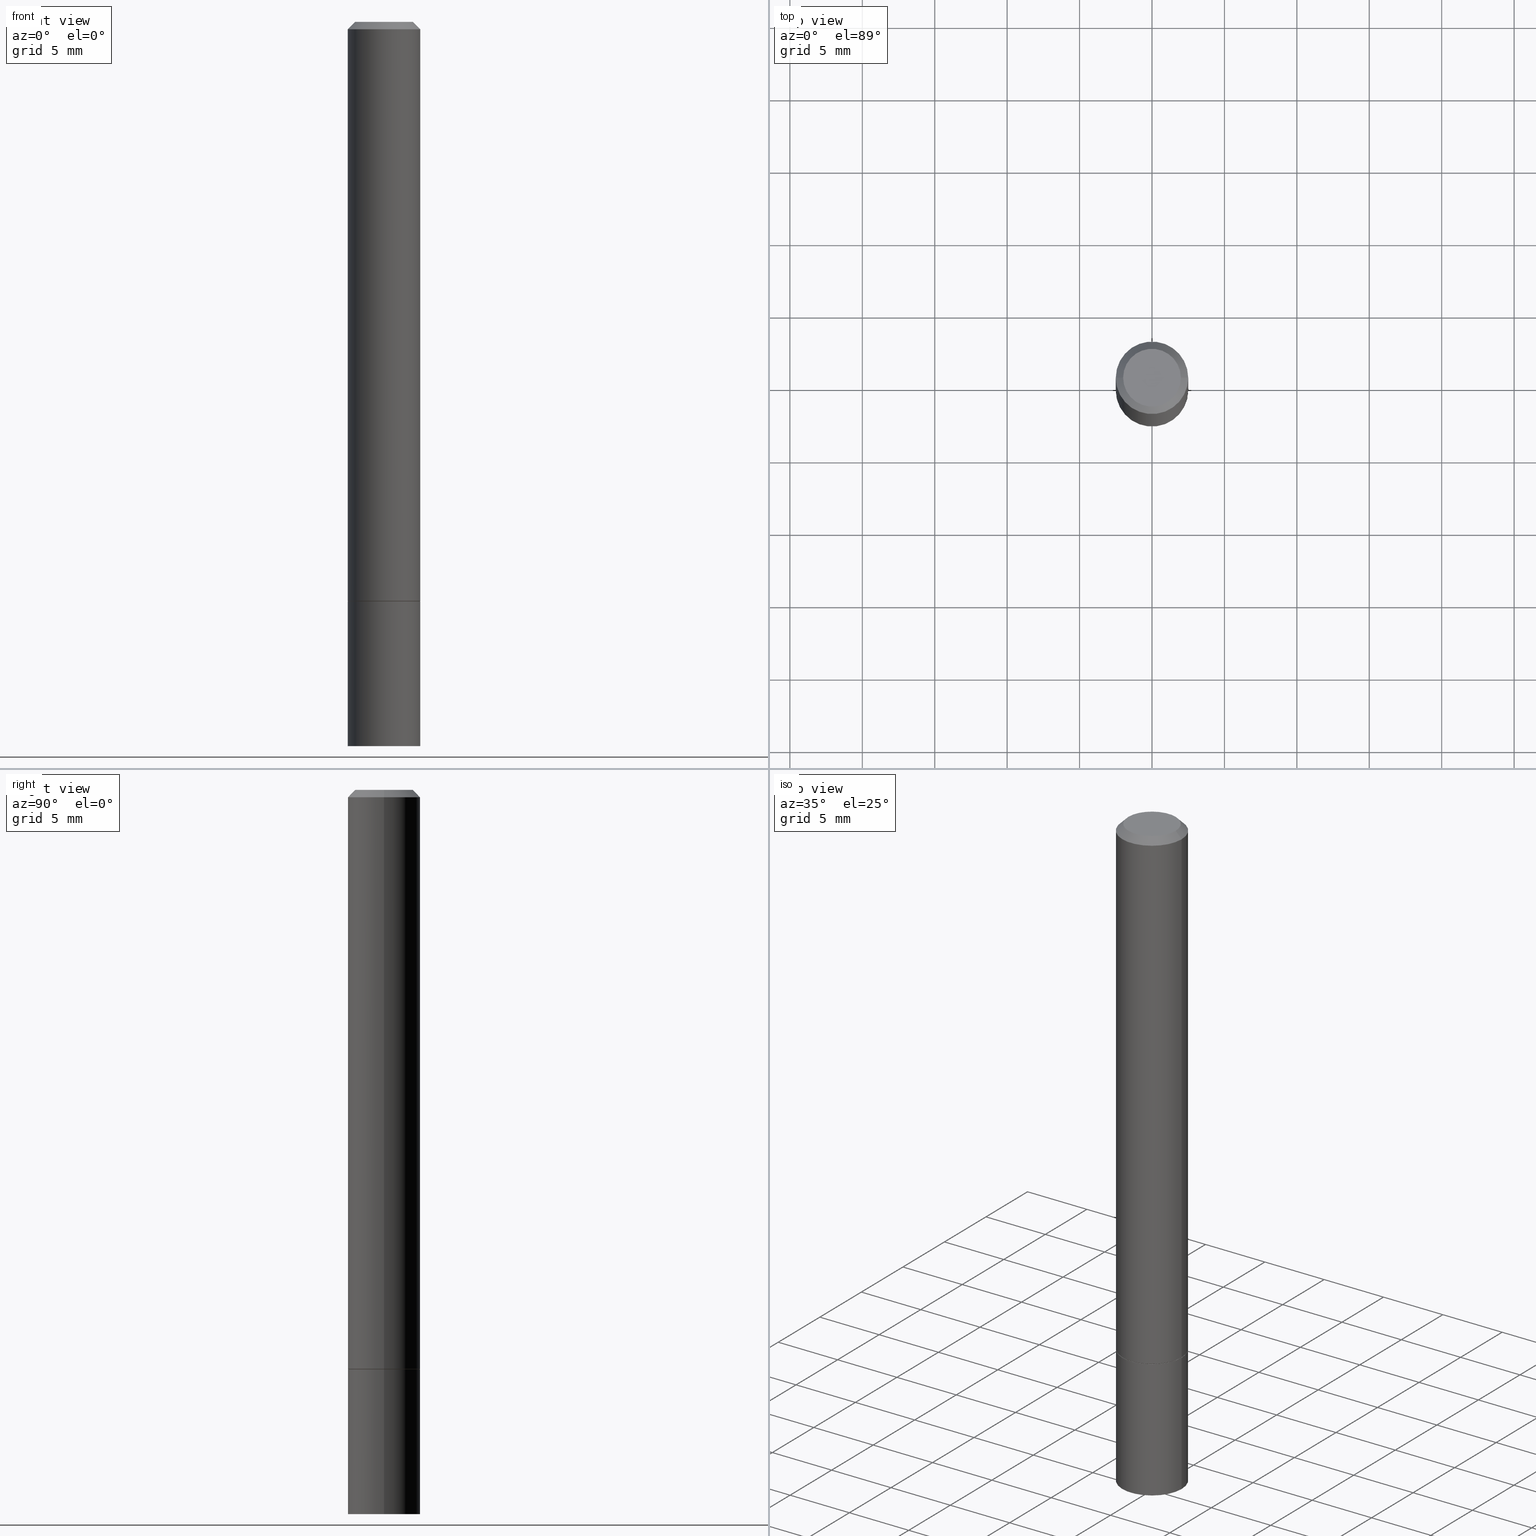
[diagram: canonical four-view strip — front | top / right | iso, engineering-drawing reading convention]
A machine part, canonical four-view strip (front | top / right | iso — engineering-drawing reading convention). The complete STEP part file that produces these views, byte-faithful:
ISO-10303-21;
HEADER;
FILE_DESCRIPTION (( 'STEP AP203' ),
    '1' );
FILE_NAME ('41737.STEP',
    '2024-02-28T02:54:46',
    ( '' ),
    ( '' ),
    'SwSTEP 2.0',
    'SolidWorks 2023',
    '' );
FILE_SCHEMA (( 'CONFIG_CONTROL_DESIGN' ));
ENDSEC;

DATA;
#1 = CARTESIAN_POINT ( 'NONE',  ( 3.851124275980353916E-29, -5.498384812410186944E-15, -1.574800000000000422 ) ) ;
#2 = DIRECTION ( 'NONE',  ( -1.000000000000000000, 6.982962677686265922E-15, -4.876176775795935793E-29 ) ) ;
#3 = CARTESIAN_POINT ( 'NONE',  ( 0.07844999999999981155, -6.417258612913221441E-16, 4.159044147803931210E-30 ) ) ;
#4 = DIRECTION ( 'NONE',  ( 2.438088387897960049E-29, -3.491481338843145188E-15, -1.000000000000000000 ) ) ;
#5 = CYLINDRICAL_SURFACE ( 'NONE', #269, 0.09844999999999988483 ) ;
#6 = PRODUCT_RELATED_PRODUCT_CATEGORY ( 'detail', '', ( #239 ) ) ;
#7 = CARTESIAN_POINT ( 'NONE',  ( 0.09844999999999978768, -7.452456546574688288E-16, -0.02000000000000002123 ) ) ;
#8 = APPLICATION_CONTEXT ( 'configuration controlled 3d designs of mechanical parts and assemblies' ) ;
#9 = LINE ( 'NONE', #100, #284 ) ;
#10 = DIRECTION ( 'NONE',  ( 0.7071067811864267805, -2.468850131080992517E-15, 0.7071067811866682540 ) ) ;
#11 = ORIENTED_EDGE ( 'NONE', *, *, #176, .F. ) ;
#12 = EDGE_CURVE ( 'NONE', #117, #337, #9, .T. ) ;
#13 = EDGE_LOOP ( 'NONE', ( #88, #339, #334, #169 ) ) ;
#14 = LINE ( 'NONE', #18, #33 ) ;
#15 = APPROVAL ( #301, 'UNSPECIFIED' ) ;
#16 = CIRCLE ( 'NONE', #170, 0.09844999999999999585 ) ;
#17 = COORDINATED_UNIVERSAL_TIME_OFFSET ( 5, 0, .BEHIND. ) ;
#18 = CARTESIAN_POINT ( 'NONE',  ( -0.09744999999999999496, -4.805960916411969841E-15, -1.574800000000000422 ) ) ;
#19 = DIRECTION ( 'NONE',  ( -1.000000000000000000, 6.982962677686265922E-15, -4.876176775795935793E-29 ) ) ;
#20 = CIRCLE ( 'NONE', #52, 0.07844999999999981155 ) ;
#21 = AXIS2_PLACEMENT_3D ( 'NONE', #69, #116, #286 ) ;
#22 = COORDINATED_UNIVERSAL_TIME_OFFSET ( 5, 0, .BEHIND. ) ;
#23 = MANIFOLD_SOLID_BREP ( 'Body-Move/Copy2[2]', #48 ) ;
#24 = VERTEX_POINT ( 'NONE', #294 ) ;
#25 = ORIENTED_EDGE ( 'NONE', *, *, #281, .T. ) ;
#26 = AXIS2_PLACEMENT_3D ( 'NONE', #42, #65, #266 ) ;
#27 = CC_DESIGN_SECURITY_CLASSIFICATION ( #186, ( #178 ) ) ;
#28 = EDGE_CURVE ( 'NONE', #366, #306, #165, .T. ) ;
#29 = VERTEX_POINT ( 'NONE', #130 ) ;
#30 = FACE_OUTER_BOUND ( 'NONE', #291, .T. ) ;
#31 = DIRECTION ( 'NONE',  ( -2.445468806185136597E-29, 3.491481338843145583E-15, 1.000000000000000000 ) ) ;
#32 = AXIS2_PLACEMENT_3D ( 'NONE', #59, #123, #67 ) ;
#33 = VECTOR ( 'NONE', #238, 39.37007874015748143 ) ;
#34 = DIRECTION ( 'NONE',  ( -2.445468806185136877E-29, 3.491481338843145188E-15, 1.000000000000000000 ) ) ;
#35 = ORIENTED_EDGE ( 'NONE', *, *, #176, .T. ) ;
#36 = FACE_OUTER_BOUND ( 'NONE', #99, .T. ) ;
#37 = FACE_OUTER_BOUND ( 'NONE', #212, .T. ) ;
#38 = FACE_OUTER_BOUND ( 'NONE', #223, .T. ) ;
#39 = DIRECTION ( 'NONE',  ( 1.000000000000000000, -6.982962677686264344E-15, 0.000000000000000000 ) ) ;
#40 = PERSON_AND_ORGANIZATION ( #146, #244 ) ;
#41 = CIRCLE ( 'NONE', #78, 0.09844999999999978768 ) ;
#42 = CARTESIAN_POINT ( 'NONE',  ( 3.851124275980353916E-29, -5.498384812410186944E-15, -1.574800000000000422 ) ) ;
#43 = DIRECTION ( 'NONE',  ( 1.000000000000000000, -6.982962677686266711E-15, 0.000000000000000000 ) ) ;
#44 = PERSON_AND_ORGANIZATION_ROLE ( 'creator' ) ;
#45 = FACE_OUTER_BOUND ( 'NONE', #340, .T. ) ;
#46 = APPROVAL_ROLE ( '' ) ;
#47 = DIRECTION ( 'NONE',  ( 1.000000000000000000, -6.982962677686265922E-15, 0.000000000000000000 ) ) ;
#48 = CLOSED_SHELL ( 'NONE', ( #349, #226, #98, #248, #55, #87, #356, #201 ) ) ;
#49 = VECTOR ( 'NONE', #359, 39.37007874015748143 ) ;
#50 = APPROVAL_ROLE ( '' ) ;
#51 = PERSON_AND_ORGANIZATION ( #146, #244 ) ;
#52 = AXIS2_PLACEMENT_3D ( 'NONE', #319, #31, #309 ) ;
#53 = CC_DESIGN_APPROVAL ( #82, ( #178 ) ) ;
#54 = VERTEX_POINT ( 'NONE', #153 ) ;
#55 = ADVANCED_FACE ( 'NONE', ( #260 ), #5, .T. ) ;
#56 = ORIENTED_EDGE ( 'NONE', *, *, #80, .F. ) ;
#57 = CONICAL_SURFACE ( 'NONE', #196, 0.09844999999999978768, 0.7853981633974471688 ) ;
#58 =( CONVERSION_BASED_UNIT ( 'INCH', #362 ) LENGTH_UNIT ( ) NAMED_UNIT ( #210 ) );
#59 = CARTESIAN_POINT ( 'NONE',  ( 0.000000000000000000, 0.000000000000000000, 0.000000000000000000 ) ) ;
#60 = ORIENTED_EDGE ( 'NONE', *, *, #191, .T. ) ;
#61 = EDGE_CURVE ( 'NONE', #193, #287, #331, .T. ) ;
#62 = CARTESIAN_POINT ( 'NONE',  ( 4.813905344975441835E-29, -6.872981015512731707E-15, -1.968500000000000139 ) ) ;
#63 = DIRECTION ( 'NONE',  ( -2.445468806185136597E-29, 3.491481338843145583E-15, 1.000000000000000000 ) ) ;
#64 = FACE_OUTER_BOUND ( 'NONE', #265, .T. ) ;
#65 = DIRECTION ( 'NONE',  ( -2.445468806185136597E-29, 3.491481338843145583E-15, 1.000000000000000000 ) ) ;
#66 = VECTOR ( 'NONE', #34, 39.37007874015748143 ) ;
#67 = DIRECTION ( 'NONE',  ( 1.000000000000000000, -6.982962677686266711E-15, 4.876176775795936353E-29 ) ) ;
#68 = CARTESIAN_POINT ( 'NONE',  ( 3.851124275980353356E-29, -5.498384812410186155E-15, -1.574800000000000200 ) ) ;
#69 = CARTESIAN_POINT ( 'NONE',  ( 4.890937612370278413E-31, -6.982962677686297772E-17, -0.02000000000000002123 ) ) ;
#70 = PRODUCT_DEFINITION ( 'UNKNOWN', '', #178, #270 ) ;
#71 = ORIENTED_EDGE ( 'NONE', *, *, #267, .F. ) ;
#72 = ORIENTED_EDGE ( 'NONE', *, *, #194, .T. ) ;
#73 = AXIS2_PLACEMENT_3D ( 'NONE', #68, #181, #289 ) ;
#74 = EDGE_CURVE ( 'NONE', #29, #54, #183, .T. ) ;
#75 = CC_DESIGN_PERSON_AND_ORGANIZATION_ASSIGNMENT ( #163, #355, ( #186 ) ) ;
#76 = DIRECTION ( 'NONE',  ( -2.445468806185136597E-29, 3.491481338843145583E-15, 1.000000000000000000 ) ) ;
#77 = CIRCLE ( 'NONE', #125, 0.09844999999999978768 ) ;
#78 = AXIS2_PLACEMENT_3D ( 'NONE', #83, #303, #43 ) ;
#79 = APPROVAL_DATE_TIME ( #110, #82 ) ;
#80 = EDGE_CURVE ( 'NONE', #29, #111, #20, .T. ) ;
#81 = COORDINATED_UNIVERSAL_TIME_OFFSET ( 5, 0, .BEHIND. ) ;
#82 = APPROVAL ( #325, 'UNSPECIFIED' ) ;
#83 = CARTESIAN_POINT ( 'NONE',  ( 4.890937612370278413E-31, -6.982962677686297772E-17, -0.02000000000000002123 ) ) ;
#84 = CLOSED_SHELL ( 'NONE', ( #240, #129, #211, #189 ) ) ;
#85 = LOCAL_TIME ( 21, 54, 46.00000000000000000, #219 ) ;
#86 = AXIS2_PLACEMENT_3D ( 'NONE', #1, #202, #336 ) ;
#87 = ADVANCED_FACE ( 'NONE', ( #38 ), #157, .T. ) ;
#88 = ORIENTED_EDGE ( 'NONE', *, *, #254, .F. ) ;
#89 = ORIENTED_EDGE ( 'NONE', *, *, #152, .T. ) ;
#90 = DIRECTION ( 'NONE',  ( 1.000000000000000000, -6.982962677686265922E-15, 0.000000000000000000 ) ) ;
#91 = CC_DESIGN_DATE_AND_TIME_ASSIGNMENT ( #101, #357, ( #70 ) ) ;
#92 = ORIENTED_EDGE ( 'NONE', *, *, #80, .T. ) ;
#93 =( NAMED_UNIT ( * ) PLANE_ANGLE_UNIT ( ) SI_UNIT ( $, .RADIAN. ) );
#94 = DIRECTION ( 'NONE',  ( -1.000000000000000000, 6.982962677686265922E-15, -4.876176775795935793E-29 ) ) ;
#95 = CARTESIAN_POINT ( 'NONE',  ( 3.848678807174168313E-29, -5.494893331071342359E-15, -1.573800000000000088 ) ) ;
#96 = PERSON_AND_ORGANIZATION ( #146, #244 ) ;
#97 = DIRECTION ( 'NONE',  ( 1.000000000000000000, -6.982962677686266711E-15, 4.876176775795936353E-29 ) ) ;
#98 = ADVANCED_FACE ( 'NONE', ( #233 ), #57, .T. ) ;
#99 = EDGE_LOOP ( 'NONE', ( #121, #198, #227, #363 ) ) ;
#100 = CARTESIAN_POINT ( 'NONE',  ( 0.09844999999999999585, -6.874726756182129545E-16, 4.800596035771099214E-30 ) ) ;
#101 = DATE_AND_TIME ( #328, #145 ) ;
#102 = DIRECTION ( 'NONE',  ( 0.7071067811865466846, -7.319954787623252890E-15, -0.7071067811865483499 ) ) ;
#103 = CALENDAR_DATE ( 2024, 27, 2 ) ;
#104 = CARTESIAN_POINT ( 'NONE',  ( 0.09844999999999978768, -7.452456546574688288E-16, -0.02000000000000002123 ) ) ;
#105 = DIRECTION ( 'NONE',  ( -2.445468806185136597E-29, 3.491481338843145583E-15, 1.000000000000000000 ) ) ;
#106 = DATE_TIME_ROLE ( 'classification_date' ) ;
#107 = AXIS2_PLACEMENT_3D ( 'NONE', #95, #63, #90 ) ;
#108 = LOCAL_TIME ( 21, 54, 46.00000000000000000, #22 ) ;
#109 = SHAPE_DEFINITION_REPRESENTATION ( #213, #323 ) ;
#110 = DATE_AND_TIME ( #241, #345 ) ;
#111 = VERTEX_POINT ( 'NONE', #3 ) ;
#112 = CARTESIAN_POINT ( 'NONE',  ( 0.09844999999999999585, -6.185857488028398715E-15, -1.574800000000000200 ) ) ;
#113 = EDGE_CURVE ( 'NONE', #276, #337, #243, .T. ) ;
#114 = VECTOR ( 'NONE', #10, 39.37007874015748143 ) ;
#115 = ORIENTED_EDGE ( 'NONE', *, *, #74, .F. ) ;
#116 = DIRECTION ( 'NONE',  ( 2.445468806185136597E-29, -3.491481338843145583E-15, -1.000000000000000000 ) ) ;
#117 = VERTEX_POINT ( 'NONE', #346 ) ;
#118 = DIRECTION ( 'NONE',  ( 2.438088387897960049E-29, -3.491481338843145188E-15, -1.000000000000000000 ) ) ;
#119 = CARTESIAN_POINT ( 'NONE',  ( 3.851124275980353916E-29, -5.498384812410186944E-15, -1.574800000000000422 ) ) ;
#120 = LINE ( 'NONE', #208, #66 ) ;
#121 = ORIENTED_EDGE ( 'NONE', *, *, #330, .F. ) ;
#122 = DIRECTION ( 'NONE',  ( 1.000000000000000000, 0.000000000000000000, 0.000000000000000000 ) ) ;
#123 = DIRECTION ( 'NONE',  ( -2.445468806185136597E-29, 3.491481338843145583E-15, 1.000000000000000000 ) ) ;
#124 = DIRECTION ( 'NONE',  ( -2.445468806185136877E-29, 3.491481338843145188E-15, 1.000000000000000000 ) ) ;
#125 = AXIS2_PLACEMENT_3D ( 'NONE', #280, #224, #259 ) ;
#126 = AXIS2_PLACEMENT_3D ( 'NONE', #333, #288, #39 ) ;
#127 = FACE_OUTER_BOUND ( 'NONE', #322, .T. ) ;
#128 = ORIENTED_EDGE ( 'NONE', *, *, #267, .T. ) ;
#129 = ADVANCED_FACE ( 'NONE', ( #37 ), #155, .T. ) ;
#130 = CARTESIAN_POINT ( 'NONE',  ( -0.07844999999999981155, 5.827282354529173170E-16, -3.953055038153090764E-30 ) ) ;
#131 = VECTOR ( 'NONE', #102, 39.37007874015748143 ) ;
#132 = APPROVAL_STATUS ( 'not_yet_approved' ) ;
#133 = CARTESIAN_POINT ( 'NONE',  ( 3.848678807174168313E-29, -5.494893331071342359E-15, -1.573800000000000088 ) ) ;
#134 = PERSON_AND_ORGANIZATION ( #146, #244 ) ;
#135 = CC_DESIGN_PERSON_AND_ORGANIZATION_ASSIGNMENT ( #96, #207, ( #239 ) ) ;
#136 = CARTESIAN_POINT ( 'NONE',  ( 3.851124275980353916E-29, -5.498384812410186944E-15, -1.574800000000000422 ) ) ;
#137 = DIRECTION ( 'NONE',  ( 2.438088387897960049E-29, -3.491481338843145188E-15, -1.000000000000000000 ) ) ;
#138 = MANIFOLD_SOLID_BREP ( 'Body-Move/Copy2[1]', #84 ) ;
#139 = ORIENTED_EDGE ( 'NONE', *, *, #194, .F. ) ;
#140 = PLANE ( 'NONE',  #86 ) ;
#141 = CC_DESIGN_DATE_AND_TIME_ASSIGNMENT ( #164, #106, ( #186 ) ) ;
#142 = ORIENTED_EDGE ( 'NONE', *, *, #28, .T. ) ;
#143 = CARTESIAN_POINT ( 'NONE',  ( -0.09744999999999999496, -4.800662462063746650E-15, -1.574800000000000422 ) ) ;
#144 = CIRCLE ( 'NONE', #324, 0.09844999999999999585 ) ;
#145 = LOCAL_TIME ( 21, 54, 46.00000000000000000, #17 ) ;
#146 = PERSON ( 'UNSPECIFIED', 'UNSPECIFIED', 'UNSPECIFIED', ('UNSPECIFIED'), ('UNSPECIFIED'), ('UNSPECIFIED') ) ;
#147 = ORIENTED_EDGE ( 'NONE', *, *, #274, .T. ) ;
#148 = FACE_OUTER_BOUND ( 'NONE', #358, .T. ) ;
#149 = PLANE ( 'NONE',  #304 ) ;
#150 = AXIS2_PLACEMENT_3D ( 'NONE', #342, #118, #94 ) ;
#151 = DIRECTION ( 'NONE',  ( -2.445468806185136597E-29, 3.491481338843145583E-15, 1.000000000000000000 ) ) ;
#152 = EDGE_CURVE ( 'NONE', #287, #193, #293, .T. ) ;
#153 = CARTESIAN_POINT ( 'NONE',  ( -0.09844999999999978768, 6.176430488413484730E-16, -0.02000000000000002123 ) ) ;
#154 = CYLINDRICAL_SURFACE ( 'NONE', #177, 0.09844999999999999585 ) ;
#155 = PLANE ( 'NONE',  #217 ) ;
#156 = DIRECTION ( 'NONE',  ( -1.000000000000000000, 6.982962677686266711E-15, 0.000000000000000000 ) ) ;
#157 = CONICAL_SURFACE ( 'NONE', #249, 0.09744999999999999496, 0.7853981633972775267 ) ;
#158 = CARTESIAN_POINT ( 'NONE',  ( 0.09844999999999999585, -6.182366006689555708E-15, -1.573800000000000088 ) ) ;
#159 = ORIENTED_EDGE ( 'NONE', *, *, #113, .T. ) ;
#160 = APPROVAL_PERSON_ORGANIZATION ( #216, #82, #46 ) ;
#161 = EDGE_CURVE ( 'NONE', #24, #117, #144, .T. ) ;
#162 = DATE_AND_TIME ( #351, #190 ) ;
#163 = PERSON_AND_ORGANIZATION ( #146, #244 ) ;
#164 = DATE_AND_TIME ( #103, #85 ) ;
#165 = CIRCLE ( 'NONE', #26, 0.09744999999999999496 ) ;
#166 =( GEOMETRIC_REPRESENTATION_CONTEXT ( 3 ) GLOBAL_UNCERTAINTY_ASSIGNED_CONTEXT ( ( #320 ) ) GLOBAL_UNIT_ASSIGNED_CONTEXT ( ( #58, #93, #317 ) ) REPRESENTATION_CONTEXT ( 'NONE', 'WORKASPACE' ) );
#167 = CARTESIAN_POINT ( 'NONE',  ( 0.09744999999999999496, -6.178874525350713489E-15, -1.574800000000000422 ) ) ;
#168 = DIRECTION ( 'NONE',  ( 1.000000000000000000, -6.982962677686264344E-15, 0.000000000000000000 ) ) ;
#169 = ORIENTED_EDGE ( 'NONE', *, *, #191, .F. ) ;
#170 = AXIS2_PLACEMENT_3D ( 'NONE', #62, #282, #290 ) ;
#171 = CC_DESIGN_PERSON_AND_ORGANIZATION_ASSIGNMENT ( #51, #44, ( #70 ) ) ;
#172 = DIRECTION ( 'NONE',  ( -2.445468806185136597E-29, 3.491481338843145583E-15, 1.000000000000000000 ) ) ;
#173 = ORIENTED_EDGE ( 'NONE', *, *, #315, .F. ) ;
#174 = CARTESIAN_POINT ( 'NONE',  ( -0.09844999999999978768, 6.176430488413484730E-16, -0.02000000000000002123 ) ) ;
#175 = LINE ( 'NONE', #264, #114 ) ;
#176 = EDGE_CURVE ( 'NONE', #111, #29, #225, .T. ) ;
#177 = AXIS2_PLACEMENT_3D ( 'NONE', #344, #172, #262 ) ;
#178 = PRODUCT_DEFINITION_FORMATION_WITH_SPECIFIED_SOURCE ( 'ANY', '', #239, .NOT_KNOWN. ) ;
#179 = ORIENTED_EDGE ( 'NONE', *, *, #274, .F. ) ;
#180 = CC_DESIGN_PERSON_AND_ORGANIZATION_ASSIGNMENT ( #134, #242, ( #178 ) ) ;
#181 = DIRECTION ( 'NONE',  ( -2.445468806185136597E-29, 3.491481338843145583E-15, 1.000000000000000000 ) ) ;
#182 = DIRECTION ( 'NONE',  ( 1.000000000000000000, -6.982962677686265922E-15, 4.876176775795935793E-29 ) ) ;
#183 = LINE ( 'NONE', #174, #327 ) ;
#184 = DIRECTION ( 'NONE',  ( -2.445468806185136597E-29, 3.491481338843145583E-15, 1.000000000000000000 ) ) ;
#185 = ORIENTED_EDGE ( 'NONE', *, *, #254, .T. ) ;
#186 = SECURITY_CLASSIFICATION ( '', '', #352 ) ;
#187 = APPROVAL_DATE_TIME ( #329, #234 ) ;
#188 = APPROVAL_ROLE ( '' ) ;
#189 = ADVANCED_FACE ( 'NONE', ( #36 ), #154, .T. ) ;
#190 = LOCAL_TIME ( 21, 54, 46.00000000000000000, #302 ) ;
#191 = EDGE_CURVE ( 'NONE', #54, #204, #77, .T. ) ;
#192 = AXIS2_PLACEMENT_3D ( 'NONE', #231, #229, #97 ) ;
#193 = VERTEX_POINT ( 'NONE', #347 ) ;
#194 = EDGE_CURVE ( 'NONE', #117, #24, #16, .T. ) ;
#195 = CARTESIAN_POINT ( 'NONE',  ( 5.478134220644862595E-16, 0.07844999999999981155, -2.739067110322441158E-16 ) ) ;
#196 = AXIS2_PLACEMENT_3D ( 'NONE', #257, #316, #156 ) ;
#197 = CIRCLE ( 'NONE', #277, 0.09844999999999999585 ) ;
#198 = ORIENTED_EDGE ( 'NONE', *, *, #161, .T. ) ;
#199 = ORIENTED_EDGE ( 'NONE', *, *, #246, .T. ) ;
#200 = DIRECTION ( 'NONE',  ( -2.445468806185136877E-29, 3.491481338843145188E-15, 1.000000000000000000 ) ) ;
#201 = ADVANCED_FACE ( 'NONE', ( #313 ), #149, .F. ) ;
#202 = DIRECTION ( 'NONE',  ( -2.438088387897960049E-29, 3.491481338843145188E-15, 1.000000000000000000 ) ) ;
#203 = CYLINDRICAL_SURFACE ( 'NONE', #32, 0.09844999999999988483 ) ;
#204 = VERTEX_POINT ( 'NONE', #7 ) ;
#205 = AXIS2_PLACEMENT_3D ( 'NONE', #136, #76, #168 ) ;
#206 = DIRECTION ( 'NONE',  ( 1.000000000000000000, -6.982962677686264344E-15, 0.000000000000000000 ) ) ;
#207 = PERSON_AND_ORGANIZATION_ROLE ( 'design_owner' ) ;
#208 = CARTESIAN_POINT ( 'NONE',  ( -0.09844999999999988483, 6.995293233558178146E-16, -4.842691596355949137E-30 ) ) ;
#209 = EDGE_LOOP ( 'NONE', ( #360, #251 ) ) ;
#210 = DIMENSIONAL_EXPONENTS ( 1.000000000000000000, 0.000000000000000000, 0.000000000000000000, 0.000000000000000000, 0.000000000000000000, 0.000000000000000000, 0.000000000000000000 ) ;
#211 = ADVANCED_FACE ( 'NONE', ( #64 ), #307, .F. ) ;
#212 = EDGE_LOOP ( 'NONE', ( #139, #220 ) ) ;
#213 = PRODUCT_DEFINITION_SHAPE ( 'NONE', 'NONE',  #70 ) ;
#214 = CARTESIAN_POINT ( 'NONE',  ( 3.851124275980353356E-29, -5.498384812410186155E-15, -1.574800000000000200 ) ) ;
#215 = DIRECTION ( 'NONE',  ( 1.000000000000000000, -6.982962677686265922E-15, 0.000000000000000000 ) ) ;
#216 = PERSON_AND_ORGANIZATION ( #146, #244 ) ;
#217 = AXIS2_PLACEMENT_3D ( 'NONE', #263, #137, #19 ) ;
#218 = APPROVAL_PERSON_ORGANIZATION ( #40, #234, #188 ) ;
#219 = COORDINATED_UNIVERSAL_TIME_OFFSET ( 5, 0, .BEHIND. ) ;
#220 = ORIENTED_EDGE ( 'NONE', *, *, #161, .F. ) ;
#221 = ORIENTED_EDGE ( 'NONE', *, *, #246, .F. ) ;
#222 = FACE_OUTER_BOUND ( 'NONE', #209, .T. ) ;
#223 = EDGE_LOOP ( 'NONE', ( #348, #142, #199, #228 ) ) ;
#224 = DIRECTION ( 'NONE',  ( -2.445468806185136597E-29, 3.491481338843145583E-15, 1.000000000000000000 ) ) ;
#225 = CIRCLE ( 'NONE', #232, 0.07844999999999981155 ) ;
#226 = ADVANCED_FACE ( 'NONE', ( #30 ), #203, .T. ) ;
#227 = ORIENTED_EDGE ( 'NONE', *, *, #12, .T. ) ;
#228 = ORIENTED_EDGE ( 'NONE', *, *, #61, .F. ) ;
#229 = DIRECTION ( 'NONE',  ( -2.445468806185136597E-29, 3.491481338843145583E-15, 1.000000000000000000 ) ) ;
#230 = DIRECTION ( 'NONE',  ( -2.445468806185136597E-29, 3.491481338843145583E-15, 1.000000000000000000 ) ) ;
#231 = CARTESIAN_POINT ( 'NONE',  ( 0.000000000000000000, 0.000000000000000000, 0.000000000000000000 ) ) ;
#232 = AXIS2_PLACEMENT_3D ( 'NONE', #353, #253, #182 ) ;
#233 = FACE_OUTER_BOUND ( 'NONE', #332, .T. ) ;
#234 = APPROVAL ( #132, 'UNSPECIFIED' ) ;
#235 = ORIENTED_EDGE ( 'NONE', *, *, #12, .F. ) ;
#236 = CC_DESIGN_PERSON_AND_ORGANIZATION_ASSIGNMENT ( #245, #299, ( #178 ) ) ;
#237 = CARTESIAN_POINT ( 'NONE',  ( 0.000000000000000000, 0.000000000000000000, 0.000000000000000000 ) ) ;
#238 = DIRECTION ( 'NONE',  ( -0.7071067811864267805, 7.493145998869918709E-15, 0.7071067811866682540 ) ) ;
#239 = PRODUCT ( '41737', '41737', '', ( #261 ) ) ;
#240 = ADVANCED_FACE ( 'NONE', ( #148 ), #310, .T. ) ;
#241 = CALENDAR_DATE ( 2024, 27, 2 ) ;
#242 = PERSON_AND_ORGANIZATION_ROLE ( 'creator' ) ;
#243 = CIRCLE ( 'NONE', #73, 0.09844999999999999585 ) ;
#244 = ORGANIZATION ( 'UNSPECIFIED', 'UNSPECIFIED', '' ) ;
#245 = PERSON_AND_ORGANIZATION ( #146, #244 ) ;
#246 = EDGE_CURVE ( 'NONE', #306, #287, #175, .T. ) ;
#247 = EDGE_LOOP ( 'NONE', ( #92, #35 ) ) ;
#248 = ADVANCED_FACE ( 'NONE', ( #127 ), #312, .T. ) ;
#249 = AXIS2_PLACEMENT_3D ( 'NONE', #119, #151, #206 ) ;
#250 = VECTOR ( 'NONE', #200, 39.37007874015748143 ) ;
#251 = ORIENTED_EDGE ( 'NONE', *, *, #28, .F. ) ;
#252 = ORIENTED_EDGE ( 'NONE', *, *, #281, .F. ) ;
#253 = DIRECTION ( 'NONE',  ( -2.445468806185136597E-29, 3.491481338843145583E-15, 1.000000000000000000 ) ) ;
#254 = EDGE_CURVE ( 'NONE', #193, #54, #120, .T. ) ;
#255 = ORIENTED_EDGE ( 'NONE', *, *, #295, .T. ) ;
#256 = CC_DESIGN_APPROVAL ( #15, ( #186 ) ) ;
#257 = CARTESIAN_POINT ( 'NONE',  ( 4.890937612370278413E-31, -6.982962677686297772E-17, -0.02000000000000002123 ) ) ;
#258 = APPLICATION_PROTOCOL_DEFINITION ( 'international standard', 'config_control_design', 1994, #8 ) ;
#259 = DIRECTION ( 'NONE',  ( 1.000000000000000000, -6.982962677686266711E-15, 0.000000000000000000 ) ) ;
#260 = FACE_OUTER_BOUND ( 'NONE', #13, .T. ) ;
#261 = MECHANICAL_CONTEXT ( 'NONE', #8, 'mechanical' ) ;
#262 = DIRECTION ( 'NONE',  ( 1.000000000000000000, -6.982962677686266711E-15, 4.876176775795936353E-29 ) ) ;
#263 = CARTESIAN_POINT ( 'NONE',  ( 6.874726756182609764E-16, 0.09844999999999311247, -1.968500000000000361 ) ) ;
#264 = CARTESIAN_POINT ( 'NONE',  ( 0.09744999999999999496, -6.178874525350713489E-15, -1.574800000000000422 ) ) ;
#265 = EDGE_LOOP ( 'NONE', ( #147, #159 ) ) ;
#266 = DIRECTION ( 'NONE',  ( 1.000000000000000000, -6.982962677686264344E-15, 0.000000000000000000 ) ) ;
#267 = EDGE_CURVE ( 'NONE', #111, #204, #318, .T. ) ;
#268 = CARTESIAN_POINT ( 'NONE',  ( 4.813905344975441835E-29, -6.872981015512731707E-15, -1.968500000000000139 ) ) ;
#269 = AXIS2_PLACEMENT_3D ( 'NONE', #237, #230, #343 ) ;
#270 = DESIGN_CONTEXT ( 'detailed design', #275, 'design' ) ;
#271 = APPROVAL_DATE_TIME ( #162, #15 ) ;
#272 = AXIS2_PLACEMENT_3D ( 'NONE', #133, #297, #350 ) ;
#273 = LINE ( 'NONE', #365, #250 ) ;
#274 = EDGE_CURVE ( 'NONE', #337, #276, #197, .T. ) ;
#275 = APPLICATION_CONTEXT ( 'configuration controlled 3d designs of mechanical parts and assemblies' ) ;
#276 = VERTEX_POINT ( 'NONE', #296 ) ;
#277 = AXIS2_PLACEMENT_3D ( 'NONE', #214, #184, #47 ) ;
#278 = ORIENTED_EDGE ( 'NONE', *, *, #152, .F. ) ;
#279 =( LENGTH_UNIT ( ) NAMED_UNIT ( * ) SI_UNIT ( $, .METRE. ) );
#280 = CARTESIAN_POINT ( 'NONE',  ( 4.890937612370278413E-31, -6.982962677686297772E-17, -0.02000000000000002123 ) ) ;
#281 = EDGE_CURVE ( 'NONE', #204, #54, #41, .T. ) ;
#282 = DIRECTION ( 'NONE',  ( -2.445468806185136597E-29, 3.491481338843145583E-15, 1.000000000000000000 ) ) ;
#283 = DIRECTION ( 'NONE',  ( -0.7071067811865466846, 2.468850131082247989E-15, -0.7071067811865483499 ) ) ;
#284 = VECTOR ( 'NONE', #124, 39.37007874015748143 ) ;
#285 = CARTESIAN_POINT ( 'NONE',  ( 0.000000000000000000, 0.000000000000000000, 0.000000000000000000 ) ) ;
#286 = DIRECTION ( 'NONE',  ( -1.000000000000000000, 6.982962677686266711E-15, 0.000000000000000000 ) ) ;
#287 = VERTEX_POINT ( 'NONE', #158 ) ;
#288 = DIRECTION ( 'NONE',  ( -2.445468806185136597E-29, 3.491481338843145583E-15, 1.000000000000000000 ) ) ;
#289 = DIRECTION ( 'NONE',  ( 1.000000000000000000, -6.982962677686265922E-15, 0.000000000000000000 ) ) ;
#290 = DIRECTION ( 'NONE',  ( 1.000000000000000000, -6.982962677686265922E-15, 0.000000000000000000 ) ) ;
#291 = EDGE_LOOP ( 'NONE', ( #89, #185, #252, #173 ) ) ;
#292 = DIRECTION ( 'NONE',  ( 0.000000000000000000, 0.000000000000000000, 1.000000000000000000 ) ) ;
#293 = CIRCLE ( 'NONE', #272, 0.09844999999999999585 ) ;
#294 = CARTESIAN_POINT ( 'NONE',  ( -0.09844999999999999585, -5.486153590605640426E-15, -1.968500000000000139 ) ) ;
#295 = EDGE_CURVE ( 'NONE', #366, #193, #14, .T. ) ;
#296 = CARTESIAN_POINT ( 'NONE',  ( -0.09844999999999999585, -5.486153590605640426E-15, -1.574800000000000200 ) ) ;
#297 = DIRECTION ( 'NONE',  ( -2.445468806185136597E-29, 3.491481338843145583E-15, 1.000000000000000000 ) ) ;
#298 = CALENDAR_DATE ( 2024, 27, 2 ) ;
#299 = PERSON_AND_ORGANIZATION_ROLE ( 'design_supplier' ) ;
#300 = AXIS2_PLACEMENT_3D ( 'NONE', #285, #292, #122 ) ;
#301 = APPROVAL_STATUS ( 'not_yet_approved' ) ;
#302 = COORDINATED_UNIVERSAL_TIME_OFFSET ( 5, 0, .BEHIND. ) ;
#303 = DIRECTION ( 'NONE',  ( -2.445468806185136597E-29, 3.491481338843145583E-15, 1.000000000000000000 ) ) ;
#304 = AXIS2_PLACEMENT_3D ( 'NONE', #195, #4, #2 ) ;
#305 = ORIENTED_EDGE ( 'NONE', *, *, #341, .T. ) ;
#306 = VERTEX_POINT ( 'NONE', #167 ) ;
#307 = PLANE ( 'NONE',  #150 ) ;
#308 = ORIENTED_EDGE ( 'NONE', *, *, #74, .T. ) ;
#309 = DIRECTION ( 'NONE',  ( 1.000000000000000000, -6.982962677686265922E-15, 4.876176775795935793E-29 ) ) ;
#310 = CYLINDRICAL_SURFACE ( 'NONE', #192, 0.09844999999999999585 ) ;
#311 = ORIENTED_EDGE ( 'NONE', *, *, #330, .T. ) ;
#312 = CONICAL_SURFACE ( 'NONE', #21, 0.09844999999999978768, 0.7853981633974471688 ) ;
#313 = FACE_OUTER_BOUND ( 'NONE', #247, .T. ) ;
#314 = CONICAL_SURFACE ( 'NONE', #205, 0.09744999999999999496, 0.7853981633972775267 ) ;
#315 = EDGE_CURVE ( 'NONE', #287, #204, #273, .T. ) ;
#316 = DIRECTION ( 'NONE',  ( 2.445468806185136597E-29, -3.491481338843145583E-15, -1.000000000000000000 ) ) ;
#317 =( NAMED_UNIT ( * ) SI_UNIT ( $, .STERADIAN. ) SOLID_ANGLE_UNIT ( ) );
#318 = LINE ( 'NONE', #104, #131 ) ;
#319 = CARTESIAN_POINT ( 'NONE',  ( 0.000000000000000000, 0.000000000000000000, 0.000000000000000000 ) ) ;
#320 = UNCERTAINTY_MEASURE_WITH_UNIT (LENGTH_MEASURE( 1.000000000000000082E-05 ), #58, 'distance_accuracy_value', 'NONE');
#321 = APPLICATION_PROTOCOL_DEFINITION ( 'international standard', 'config_control_design', 1994, #275 ) ;
#322 = EDGE_LOOP ( 'NONE', ( #71, #56, #308, #60 ) ) ;
#323 = ADVANCED_BREP_SHAPE_REPRESENTATION ( '41737', ( #138, #23, #300 ), #166 ) ;
#324 = AXIS2_PLACEMENT_3D ( 'NONE', #268, #105, #215 ) ;
#325 = APPROVAL_STATUS ( 'not_yet_approved' ) ;
#326 = PERSON_AND_ORGANIZATION ( #146, #244 ) ;
#327 = VECTOR ( 'NONE', #283, 39.37007874015748143 ) ;
#328 = CALENDAR_DATE ( 2024, 27, 2 ) ;
#329 = DATE_AND_TIME ( #298, #108 ) ;
#330 = EDGE_CURVE ( 'NONE', #24, #276, #335, .T. ) ;
#331 = CIRCLE ( 'NONE', #107, 0.09844999999999999585 ) ;
#332 = EDGE_LOOP ( 'NONE', ( #11, #128, #25, #115 ) ) ;
#333 = CARTESIAN_POINT ( 'NONE',  ( 3.851124275980353916E-29, -5.498384812410186944E-15, -1.574800000000000422 ) ) ;
#334 = ORIENTED_EDGE ( 'NONE', *, *, #315, .T. ) ;
#335 = LINE ( 'NONE', #364, #49 ) ;
#336 = DIRECTION ( 'NONE',  ( 1.000000000000000000, -6.982962677686265922E-15, 4.876176775795935793E-29 ) ) ;
#337 = VERTEX_POINT ( 'NONE', #112 ) ;
#338 = CIRCLE ( 'NONE', #126, 0.09744999999999999496 ) ;
#339 = ORIENTED_EDGE ( 'NONE', *, *, #61, .T. ) ;
#340 = EDGE_LOOP ( 'NONE', ( #305, #255, #278, #221 ) ) ;
#341 = EDGE_CURVE ( 'NONE', #306, #366, #338, .T. ) ;
#342 = CARTESIAN_POINT ( 'NONE',  ( 6.874726756182513129E-16, 0.09844999999999450024, -1.574800000000000422 ) ) ;
#343 = DIRECTION ( 'NONE',  ( 1.000000000000000000, -6.982962677686266711E-15, 4.876176775795936353E-29 ) ) ;
#344 = CARTESIAN_POINT ( 'NONE',  ( 0.000000000000000000, 0.000000000000000000, 0.000000000000000000 ) ) ;
#345 = LOCAL_TIME ( 21, 54, 46.00000000000000000, #81 ) ;
#346 = CARTESIAN_POINT ( 'NONE',  ( 0.09844999999999999585, -7.560453691130944267E-15, -1.968500000000000139 ) ) ;
#347 = CARTESIAN_POINT ( 'NONE',  ( -0.09844999999999999585, -2.082832155568281168E-15, -1.573800000000000088 ) ) ;
#348 = ORIENTED_EDGE ( 'NONE', *, *, #295, .F. ) ;
#349 = ADVANCED_FACE ( 'NONE', ( #45 ), #314, .T. ) ;
#350 = DIRECTION ( 'NONE',  ( 1.000000000000000000, -6.982962677686265922E-15, 0.000000000000000000 ) ) ;
#351 = CALENDAR_DATE ( 2024, 27, 2 ) ;
#352 = SECURITY_CLASSIFICATION_LEVEL ( 'unclassified' ) ;
#353 = CARTESIAN_POINT ( 'NONE',  ( 0.000000000000000000, 0.000000000000000000, 0.000000000000000000 ) ) ;
#354 = CC_DESIGN_APPROVAL ( #234, ( #70 ) ) ;
#355 = PERSON_AND_ORGANIZATION_ROLE ( 'classification_officer' ) ;
#356 = ADVANCED_FACE ( 'NONE', ( #222 ), #140, .F. ) ;
#357 = DATE_TIME_ROLE ( 'creation_date' ) ;
#358 = EDGE_LOOP ( 'NONE', ( #72, #311, #179, #235 ) ) ;
#359 = DIRECTION ( 'NONE',  ( -2.445468806185136877E-29, 3.491481338843145188E-15, 1.000000000000000000 ) ) ;
#360 = ORIENTED_EDGE ( 'NONE', *, *, #341, .F. ) ;
#361 = APPROVAL_PERSON_ORGANIZATION ( #326, #15, #50 ) ;
#362 = LENGTH_MEASURE_WITH_UNIT ( LENGTH_MEASURE( 0.02539999999999999897 ), #279 );
#363 = ORIENTED_EDGE ( 'NONE', *, *, #113, .F. ) ;
#364 = CARTESIAN_POINT ( 'NONE',  ( -0.09844999999999999585, 6.995293233558186035E-16, -4.842691596355954042E-30 ) ) ;
#365 = CARTESIAN_POINT ( 'NONE',  ( 0.09844999999999988483, -6.874726756182121656E-16, 4.800596035771093609E-30 ) ) ;
#366 = VERTEX_POINT ( 'NONE', #143 ) ;
ENDSEC;
END-ISO-10303-21;
